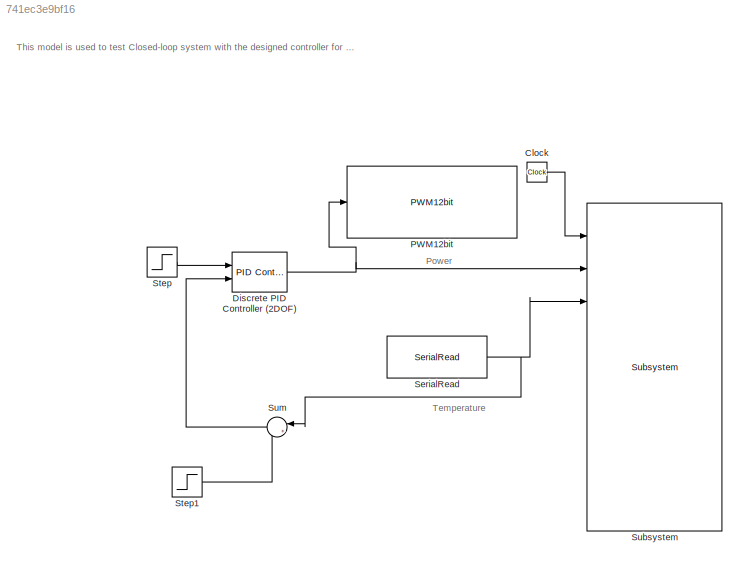
MODEL slx_741ec3e9bf16
KIND model
CONFIG AbsTol = auto
CONFIG EnableMultiTasking = on
CONFIG FixedStep = 1
CONFIG MaxStep = auto
CONFIG MinStep = auto
CONFIG RelTol = 1e-3
CONFIG SampleTimeConstraint = Unconstrained
CONFIG Solver = FixedStepDiscrete
CONFIG SolverName = FixedStepDiscrete
CONFIG StartTime = 0.0
CONFIG StopTime = inf
BLOCK [Clock] Clock
BLOCK [Reference] Discrete PID Controller (2DOF)  REF=simulink/Continuous/PID Controller (2DOF)
  Ports = [2, 1]
  SourceBlock = simulink/Continuous/PID Controller (2DOF)
  SourceType = PID 2dof
BLOCK [Reference] PWM12bit  REF=EEE481Arduino/PWM12bit
  Ports = [1]
  SourceBlock = EEE481Arduino/PWM12bit
BLOCK [Reference] SerialRead  REF=EEE481Arduino/SerialRead
  Ports = [0, 1]
  SourceBlock = EEE481Arduino/SerialRead
BLOCK [Step] Step
  SampleTime = 0
BLOCK [Step] Step1
  SampleTime = 0
BLOCK [Reference] Subsystem  REF=EEE481Arduino/Subsystem
  Ports = [9, 3]
  SourceBlock = EEE481Arduino/Subsystem
BLOCK [Sum] Sum
  IconShape = round
  InputSameDT = off
  Inputs = |++
  OutDataTypeStr = Inherit: Inherit via internal rule
  Ports = [2, 1]
  SaturateOnIntegerOverflow = off
ANNOTATION (root): This model is used to test Closed-loop system with the designed controller for the step signal reference tracking and for the step output disturbance rejection
ANNOTATION (root): Power
ANNOTATION (root): Temperature
LINE Clock:1 -> Subsystem:1
NET Discrete PID Controller (2DOF):1 -> PWM12bit:1, Subsystem:2
NET SerialRead:1 -> Subsystem:3, Sum:1
LINE Step1:1 -> Sum:2
LINE Step:1 -> Discrete PID Controller (2DOF):1
LINE Sum:1 -> Discrete PID Controller (2DOF):2
note: NET lines group one-source signal fan-out (src -> all destinations, sorted); 1:1 wires keep LINE
